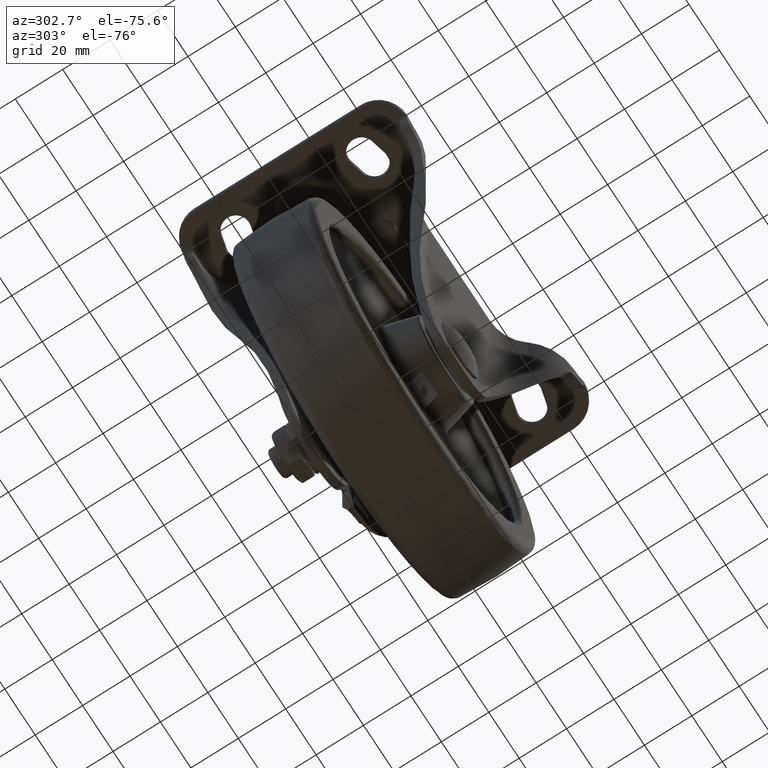
[diagram: clean part render]
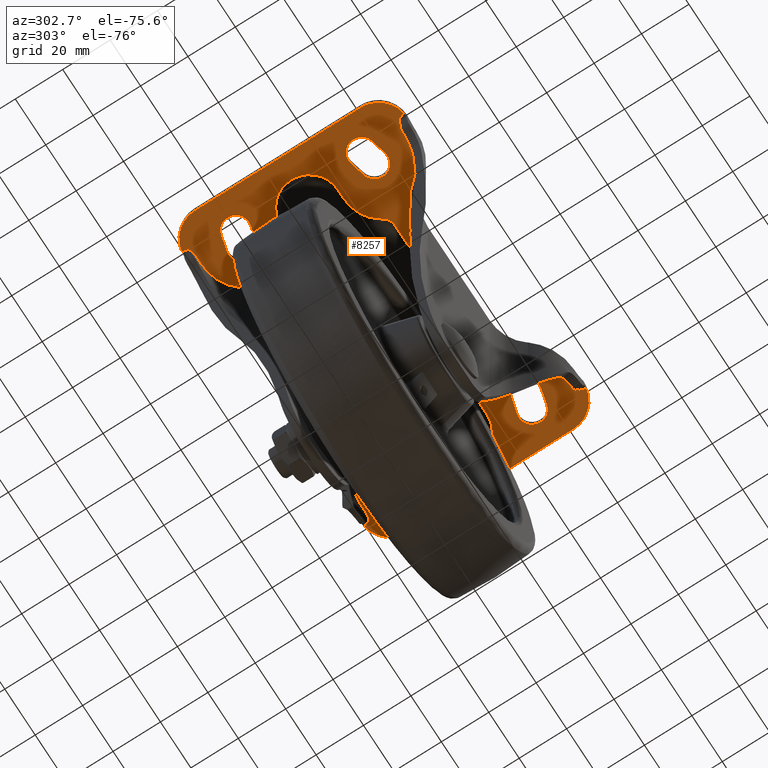
[diagram: same view with one face highlighted and labeled with its STEP entity id]
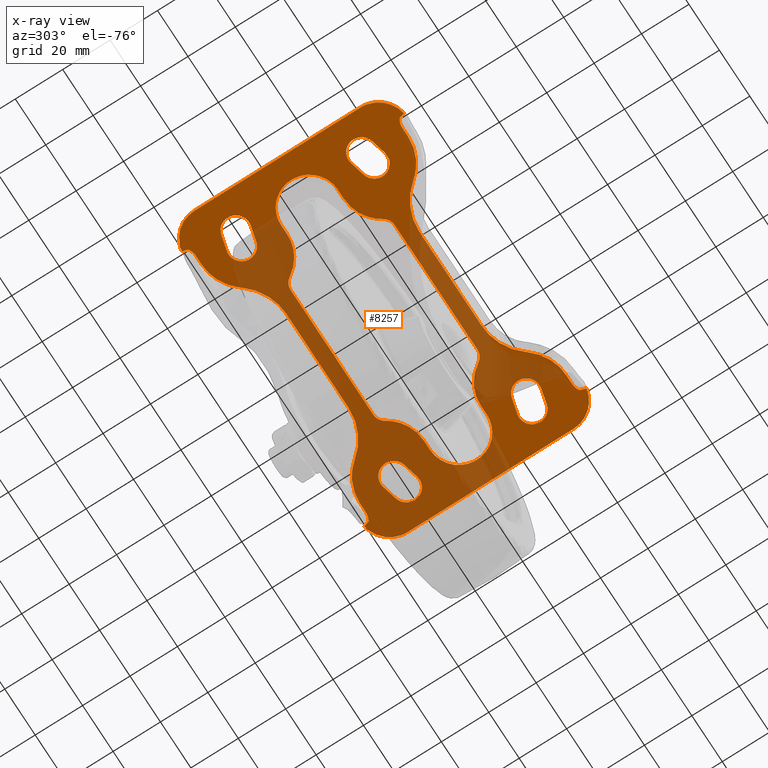
[diagram: x-ray of the same camera — body ghosted, the highlighted face saturated]
A machine part, auxiliary view. The second image highlights one B-rep face of the part: STEP entity #8257.
The next image is the same camera in x-ray: the body ghosted, the highlighted face saturated — about 50% of this face is hidden behind the body in this view.
In plain terms, the highlighted face is a freeform B-spline surface patch.
Its self-contained STEP definition (entity closure, byte-faithful):
#5014=CARTESIAN_POINT('',(-45.0,12.0,111.500000000000000));
#5015=VERTEX_POINT('',#5014);
#5027=CARTESIAN_POINT('',(-31.370633280001300,19.619047619047450,111.500000000000000));
#5028=VERTEX_POINT('',#5027);
#5029=CARTESIAN_POINT('',(-31.370633280001361,19.619047619047500,111.500000000000000));
#5030=CARTESIAN_POINT('',(-36.055728090000926,11.999999999999998,111.500000000000000));
#5031=CARTESIAN_POINT('',(-45.0,12.0,111.500000000000000));
#5039=(BOUNDED_CURVE()B_SPLINE_CURVE(2,(#5029,#5030,#5031),.UNSPECIFIED.,.F.,.U.)CURVE()GEOMETRIC_REPRESENTATION_ITEM()QUASI_UNIFORM_CURVE()RATIONAL_B_SPLINE_CURVE((1.0,0.872871560943972,1.0))REPRESENTATION_ITEM(''));
#5040=EDGE_CURVE('',#5028,#5015,#5039,.T.);
#5074=CARTESIAN_POINT('',(-27.111453999999998,21.999999999999751,111.500000000000000));
#5075=VERTEX_POINT('',#5074);
#5089=CARTESIAN_POINT('',(-31.370633280001272,19.619047619047429,111.500000000000000));
#5090=CARTESIAN_POINT('',(-29.906540402500724,22.000001218657896,111.499999999999990));
#5091=CARTESIAN_POINT('',(-27.111453999999998,21.999999999999279,111.500000000000000));
#5099=(BOUNDED_CURVE()B_SPLINE_CURVE(2,(#5089,#5090,#5091),.UNSPECIFIED.,.F.,.U.)CURVE()GEOMETRIC_REPRESENTATION_ITEM()QUASI_UNIFORM_CURVE()RATIONAL_B_SPLINE_CURVE((1.0,0.872871454570761,1.0))REPRESENTATION_ITEM(''));
#5100=EDGE_CURVE('',#5028,#5075,#5099,.T.);
#5119=CARTESIAN_POINT('',(-48.999996230088712,11.999999999999400,111.500000000000000));
#5120=VERTEX_POINT('',#5119);
#5132=CARTESIAN_POINT('',(-45.0,12.0,111.500000000000000));
#5133=CARTESIAN_POINT('',(-48.999996230088712,11.999999999999400,111.500000000000000));
#5134=QUASI_UNIFORM_CURVE('',1,(#5132,#5133),.UNSPECIFIED.,.F.,.U.);
#5135=EDGE_CURVE('',#5015,#5120,#5134,.T.);
#5156=CARTESIAN_POINT('',(27.111453999999899,22.0,111.500000000000000));
#5157=VERTEX_POINT('',#5156);
#5171=CARTESIAN_POINT('',(27.111453999999899,22.0,111.500000000000000));
#5172=CARTESIAN_POINT('',(-27.111453999999998,21.999999999999751,111.500000000000000));
#5173=QUASI_UNIFORM_CURVE('',1,(#5171,#5172),.UNSPECIFIED.,.F.,.U.);
#5174=EDGE_CURVE('',#5157,#5075,#5173,.T.);
#5202=CARTESIAN_POINT('',(-49.0,-12.0,111.500000000000000));
#5203=VERTEX_POINT('',#5202);
#5215=CARTESIAN_POINT('',(-49.0,-12.0,111.500000000000000));
#5216=CARTESIAN_POINT('',(-49.834472361555413,-12.000130320826120,111.500000000000200));
#5217=CARTESIAN_POINT('',(-51.307036835696522,-11.845745957801469,111.499999999999800));
#5218=CARTESIAN_POINT('',(-53.525936953354403,-11.187532414233839,111.500000000000300));
#5219=CARTESIAN_POINT('',(-55.723493860621502,-10.064688621414570,111.499999999998810));
#5220=CARTESIAN_POINT('',(-57.804894789090433,-8.313266858075561,111.500000000003600));
#5221=CARTESIAN_POINT('',(-59.305230198699100,-6.290139808948238,111.499999999992100));
#5222=CARTESIAN_POINT('',(-60.179488599382744,-4.470232022201082,111.500000000006390));
#5223=CARTESIAN_POINT('',(-60.743938218803407,-2.688699592063443,111.499999999996310));
#5224=CARTESIAN_POINT('',(-61.015091145477939,-0.934890144535096,111.500000000001510));
#5225=CARTESIAN_POINT('',(-61.001902529251062,1.229906800372216,111.499999999999100));
#5226=CARTESIAN_POINT('',(-60.640275044617397,3.171974123749511,111.500000000001190));
#5227=CARTESIAN_POINT('',(-59.856133431873232,5.242440736531533,111.499999999997300));
#5228=CARTESIAN_POINT('',(-58.837866419373263,6.989639497175285,111.500000000007600));
#5229=CARTESIAN_POINT('',(-57.614938377356673,8.407247165037896,111.499999999998390));
#5230=CARTESIAN_POINT('',(-56.252664831393382,9.611821585403630,111.499999999999800));
#5231=CARTESIAN_POINT('',(-54.524242616982100,10.751674189850281,111.500000000000300));
#5232=CARTESIAN_POINT('',(-51.994201655433372,11.745420406537910,111.499999999999900));
#5233=CARTESIAN_POINT('',(-50.030861091300579,12.000313627264150,111.500000000000100));
#5234=CARTESIAN_POINT('',(-48.999996230088712,11.999999999999400,111.500000000000000));
#5235=B_SPLINE_CURVE_WITH_KNOTS('',3,(#5215,#5216,#5217,#5218,#5219,#5220,#5221,#5222,#5223,#5224,#5225,#5226,#5227,#5228,#5229,#5230,#5231,#5232,#5233,#5234),.UNSPECIFIED.,.F.,.U.,(4,1,1,1,1,1,1,1,1,1,1,1,1,1,1,1,1,4),(0.000000440154473,2.503406370306337,4.417887970567954,6.921379918940346,9.866651256911055,12.517442189424440,14.431713789825560,15.904416879649309,18.113359223212068,19.733262176311989,22.384052188058352,24.003895212551701,26.360012764047379,28.421772890683361,29.599875401871369,31.808830370072521,34.606834739181380,37.699352159154238),.UNSPECIFIED.);
#5236=EDGE_CURVE('',#5203,#5120,#5235,.T.);
#5260=CARTESIAN_POINT('',(31.370629280001499,19.619047619047450,111.500000000000000));
#5261=VERTEX_POINT('',#5260);
#5276=CARTESIAN_POINT('',(27.111453999999899,22.0,111.500000000000000));
#5277=CARTESIAN_POINT('',(29.906537777500990,21.999998982590316,111.500000000000000));
#5278=CARTESIAN_POINT('',(31.370629280001609,19.619047619047521,111.500000000000000));
#5286=(BOUNDED_CURVE()B_SPLINE_CURVE(2,(#5276,#5277,#5278),.UNSPECIFIED.,.F.,.U.)CURVE()GEOMETRIC_REPRESENTATION_ITEM()QUASI_UNIFORM_CURVE()RATIONAL_B_SPLINE_CURVE((1.0,0.872871649750756,1.0))REPRESENTATION_ITEM(''));
#5287=EDGE_CURVE('',#5157,#5261,#5286,.T.);
#5306=CARTESIAN_POINT('',(-44.999994973451649,-12.000000000000799,111.500000000000000));
#5307=VERTEX_POINT('',#5306);
#5318=CARTESIAN_POINT('',(-49.0,-12.0,111.500000000000000));
#5319=CARTESIAN_POINT('',(-44.999994973451649,-12.000000000000799,111.500000000000000));
#5320=QUASI_UNIFORM_CURVE('',1,(#5318,#5319),.UNSPECIFIED.,.F.,.U.);
#5321=EDGE_CURVE('',#5203,#5307,#5320,.T.);
#5345=CARTESIAN_POINT('',(44.999996000000152,12.0,111.500000000000000));
#5346=VERTEX_POINT('',#5345);
#5360=CARTESIAN_POINT('',(44.999996000000152,12.0,111.500000000000000));
#5361=CARTESIAN_POINT('',(36.055724090001121,12.000000000000005,111.500000000000010));
#5362=CARTESIAN_POINT('',(31.370629280001531,19.619047619047471,111.500000000000000));
#5370=(BOUNDED_CURVE()B_SPLINE_CURVE(2,(#5360,#5361,#5362),.UNSPECIFIED.,.F.,.U.)CURVE()GEOMETRIC_REPRESENTATION_ITEM()QUASI_UNIFORM_CURVE()RATIONAL_B_SPLINE_CURVE((1.0,0.872871560943972,1.0))REPRESENTATION_ITEM(''));
#5371=EDGE_CURVE('',#5346,#5261,#5370,.T.);
#5393=CARTESIAN_POINT('',(-31.370633280001300,-19.619047619047450,111.500000000000000));
#5394=VERTEX_POINT('',#5393);
#5406=CARTESIAN_POINT('',(-44.999994973451649,-12.000000000000790,111.500000000000000));
#5407=CARTESIAN_POINT('',(-36.055726362125100,-12.000002809925702,111.500000000000010));
#5408=CARTESIAN_POINT('',(-31.370633280001361,-19.619047619047489,111.500000000000000));
#5416=(BOUNDED_CURVE()B_SPLINE_CURVE(2,(#5406,#5407,#5408),.UNSPECIFIED.,.F.,.U.)CURVE()GEOMETRIC_REPRESENTATION_ITEM()QUASI_UNIFORM_CURVE()RATIONAL_B_SPLINE_CURVE((1.0,0.872871637590975,1.0))REPRESENTATION_ITEM(''));
#5417=EDGE_CURVE('',#5307,#5394,#5416,.T.);
#5438=CARTESIAN_POINT('',(48.999996000000102,12.0,111.500000000000000));
#5439=VERTEX_POINT('',#5438);
#5453=CARTESIAN_POINT('',(48.999996000000102,12.0,111.500000000000000));
#5454=CARTESIAN_POINT('',(44.999996000000152,12.0,111.500000000000000));
#5455=QUASI_UNIFORM_CURVE('',1,(#5453,#5454),.UNSPECIFIED.,.F.,.U.);
#5456=EDGE_CURVE('',#5439,#5346,#5455,.T.);
#5478=CARTESIAN_POINT('',(-27.111453999999998,-22.0,111.500000000000000));
#5479=VERTEX_POINT('',#5478);
#5490=CARTESIAN_POINT('',(-27.111453999999998,-22.0,111.500000000000000));
#5491=CARTESIAN_POINT('',(-29.906540402500852,-22.000001218658145,111.500000000000000));
#5492=CARTESIAN_POINT('',(-31.370633280001378,-19.619047619047500,111.500000000000000));
#5500=(BOUNDED_CURVE()B_SPLINE_CURVE(2,(#5490,#5491,#5492),.UNSPECIFIED.,.F.,.U.)CURVE()GEOMETRIC_REPRESENTATION_ITEM()QUASI_UNIFORM_CURVE()RATIONAL_B_SPLINE_CURVE((1.0,0.872871454570751,1.0))REPRESENTATION_ITEM(''));
#5501=EDGE_CURVE('',#5479,#5394,#5500,.T.);
#5531=CARTESIAN_POINT('',(48.999988250738298,-11.999999999997501,111.500000000000000));
#5532=VERTEX_POINT('',#5531);
#5545=CARTESIAN_POINT('',(48.999996000000102,12.0,111.500000000000000));
#5546=CARTESIAN_POINT('',(49.638106384124882,12.000025372806370,111.500000000000000));
#5547=CARTESIAN_POINT('',(51.012548082255393,11.890173149357519,111.500000000000200));
#5548=CARTESIAN_POINT('',(52.874545212118690,11.411598380359870,111.499999999999600));
#5549=CARTESIAN_POINT('',(54.633453086579273,10.644752016604700,111.500000000000500));
#5550=CARTESIAN_POINT('',(56.429487943943798,9.523046787035227,111.499999999999600));
#5551=CARTESIAN_POINT('',(58.085540300626342,7.965548623183111,111.500000000000100));
#5552=CARTESIAN_POINT('',(59.503971014735249,5.951424093706848,111.500000000000300));
#5553=CARTESIAN_POINT('',(60.396139925271640,3.971569012458352,111.499999999999600));
#5554=CARTESIAN_POINT('',(60.968149688144877,1.627368968688728,111.499999999999400));
#5555=CARTESIAN_POINT('',(61.061500901101432,-0.545142599014517,111.500000000000400));
#5556=CARTESIAN_POINT('',(60.714768696392937,-2.882219748546745,111.499999999999100));
#5557=CARTESIAN_POINT('',(60.131360934407482,-4.612587362935891,111.500000000000400));
#5558=CARTESIAN_POINT('',(59.248561001829067,-6.313919320938458,111.500000000000000));
#5559=CARTESIAN_POINT('',(58.227321297915097,-7.764062421828831,111.500000000000000));
#5560=CARTESIAN_POINT('',(56.589955447540198,-9.401575400549820,111.500000000000000));
#5561=CARTESIAN_POINT('',(54.609489053944607,-10.707436852216279,111.500000000000100));
#5562=CARTESIAN_POINT('',(51.994045361067549,-11.734653837966860,111.499999999999900));
#5563=CARTESIAN_POINT('',(50.129046213932241,-12.000465256668610,111.500000000000100));
#5564=CARTESIAN_POINT('',(48.999988250738298,-11.999999999997501,111.500000000000000));
#5565=B_SPLINE_CURVE_WITH_KNOTS('',3,(#5545,#5546,#5547,#5548,#5549,#5550,#5551,#5552,#5553,#5554,#5555,#5556,#5557,#5558,#5559,#5560,#5561,#5562,#5563,#5564),.UNSPECIFIED.,.F.,.U.,(4,1,1,1,1,1,1,1,1,1,1,1,1,1,1,1,1,4),(0.000000440100784,1.914347118865059,4.123331847487108,5.743254398602609,7.657691380527087,10.455703550303920,12.517443510705210,15.020775070945430,16.935248663473210,19.733264259268729,21.500419982528999,24.003897746325311,25.181918362765149,27.243668579335971,29.305322689265640,32.103370949841832,34.312355740009743,37.699356138579702),.UNSPECIFIED.);
#5566=EDGE_CURVE('',#5439,#5532,#5565,.T.);
#5585=CARTESIAN_POINT('',(27.111452180001951,-21.999999999999751,111.500000000000000));
#5586=VERTEX_POINT('',#5585);
#5598=CARTESIAN_POINT('',(-27.111453999999998,-22.0,111.500000000000000));
#5599=CARTESIAN_POINT('',(27.111452180001951,-21.999999999999751,111.500000000000000));
#5600=QUASI_UNIFORM_CURVE('',1,(#5598,#5599),.UNSPECIFIED.,.F.,.U.);
#5601=EDGE_CURVE('',#5479,#5586,#5600,.T.);
#5622=CARTESIAN_POINT('',(44.999996000000102,-12.0,111.500000000000000));
#5623=VERTEX_POINT('',#5622);
#5637=CARTESIAN_POINT('',(44.999996000000102,-12.0,111.500000000000000));
#5638=CARTESIAN_POINT('',(48.999988250738298,-11.999999999997501,111.500000000000000));
#5639=QUASI_UNIFORM_CURVE('',1,(#5637,#5638),.UNSPECIFIED.,.F.,.U.);
#5640=EDGE_CURVE('',#5623,#5532,#5639,.T.);
#5662=CARTESIAN_POINT('',(31.370629280001499,-19.619047619047450,111.500000000000000));
#5663=VERTEX_POINT('',#5662);
#5675=CARTESIAN_POINT('',(31.370629280001499,-19.619047619047450,111.500000000000000));
#5676=CARTESIAN_POINT('',(29.906537151876620,-21.999999999999748,111.500000000000000));
#5677=CARTESIAN_POINT('',(27.111452180001951,-21.999999999999751,111.500000000000000));
#5685=(BOUNDED_CURVE()B_SPLINE_CURVE(2,(#5675,#5676,#5677),.UNSPECIFIED.,.F.,.U.)CURVE()GEOMETRIC_REPRESENTATION_ITEM()QUASI_UNIFORM_CURVE()RATIONAL_B_SPLINE_CURVE((1.0,0.872871560943974,1.0))REPRESENTATION_ITEM(''));
#5686=EDGE_CURVE('',#5663,#5586,#5685,.T.);
#5711=CARTESIAN_POINT('',(31.370629280001531,-19.619047619047478,111.500000000000000));
#5712=CARTESIAN_POINT('',(36.055724090001100,-12.000000000000005,111.500000000000000));
#5713=CARTESIAN_POINT('',(44.999996000000152,-12.0,111.500000000000000));
#5721=(BOUNDED_CURVE()B_SPLINE_CURVE(2,(#5711,#5712,#5713),.UNSPECIFIED.,.F.,.U.)CURVE()GEOMETRIC_REPRESENTATION_ITEM()QUASI_UNIFORM_CURVE()RATIONAL_B_SPLINE_CURVE((1.0,0.872871560943972,1.0))REPRESENTATION_ITEM(''));
#5722=EDGE_CURVE('',#5663,#5623,#5721,.T.);
#6466=CARTESIAN_POINT('',(37.376290127769849,-36.331249999999997,111.500000000000000));
#6467=VERTEX_POINT('',#6466);
#6473=CARTESIAN_POINT('',(51.999996000000003,-43.500000000000000,111.500000000000000));
#6474=VERTEX_POINT('',#6473);
#6475=CARTESIAN_POINT('',(37.376290127769813,-36.331250000000033,111.500000000000000));
#6476=CARTESIAN_POINT('',(42.931031117996788,-43.500000000000000,111.500000000000040));
#6477=CARTESIAN_POINT('',(51.999996000000003,-43.500000000000000,111.500000000000000));
#6485=(BOUNDED_CURVE()B_SPLINE_CURVE(2,(#6475,#6476,#6477),.UNSPECIFIED.,.F.,.U.)CURVE()GEOMETRIC_REPRESENTATION_ITEM()QUASI_UNIFORM_CURVE()RATIONAL_B_SPLINE_CURVE((1.0,0.897914249803399,1.0))REPRESENTATION_ITEM(''));
#6486=EDGE_CURVE('',#6467,#6474,#6485,.T.);
#6513=CARTESIAN_POINT('',(20.381172492475301,-28.0,111.500000000000000));
#6514=VERTEX_POINT('',#6513);
#6520=CARTESIAN_POINT('',(37.376290127769849,-36.331249999999997,111.500000000000000));
#6521=CARTESIAN_POINT('',(30.920780328316880,-28.000000000000004,111.500000000000040));
#6522=CARTESIAN_POINT('',(20.381172492475301,-28.0,111.500000000000000));
#6530=(BOUNDED_CURVE()B_SPLINE_CURVE(2,(#6520,#6521,#6522),.UNSPECIFIED.,.F.,.U.)CURVE()GEOMETRIC_REPRESENTATION_ITEM()QUASI_UNIFORM_CURVE()RATIONAL_B_SPLINE_CURVE((1.0,0.897914249803399,1.0))REPRESENTATION_ITEM(''));
#6531=EDGE_CURVE('',#6467,#6514,#6530,.T.);
#6543=CARTESIAN_POINT('',(-20.381176492475149,-28.0,111.500000000000000));
#6544=VERTEX_POINT('',#6543);
#6550=CARTESIAN_POINT('',(20.381172492475301,-28.0,111.500000000000000));
#6551=CARTESIAN_POINT('',(-20.381176492475149,-28.0,111.500000000000000));
#6552=QUASI_UNIFORM_CURVE('',1,(#6550,#6551),.UNSPECIFIED.,.F.,.U.);
#6553=EDGE_CURVE('',#6514,#6544,#6552,.T.);
#6582=CARTESIAN_POINT('',(-37.376294127769746,-36.331249999999997,111.500000000000000));
#6583=VERTEX_POINT('',#6582);
#6589=CARTESIAN_POINT('',(-20.381176492475149,-28.0,111.500000000000000));
#6590=CARTESIAN_POINT('',(-30.920784328316746,-28.000000000000004,111.499999999999970));
#6591=CARTESIAN_POINT('',(-37.376294127769718,-36.331250000000033,111.500000000000000));
#6599=(BOUNDED_CURVE()B_SPLINE_CURVE(2,(#6589,#6590,#6591),.UNSPECIFIED.,.F.,.U.)CURVE()GEOMETRIC_REPRESENTATION_ITEM()QUASI_UNIFORM_CURVE()RATIONAL_B_SPLINE_CURVE((1.0,0.897914249803398,1.0))REPRESENTATION_ITEM(''));
#6600=EDGE_CURVE('',#6544,#6583,#6599,.T.);
#6639=CARTESIAN_POINT('',(-52.0,-43.500000000000000,111.500000000000000));
#6640=VERTEX_POINT('',#6639);
#6646=CARTESIAN_POINT('',(-52.0,-43.500000000000000,111.500000000000000));
#6647=CARTESIAN_POINT('',(-42.931035117996764,-43.500000000000000,111.499999999999970));
#6648=CARTESIAN_POINT('',(-37.376294127769782,-36.331249999999983,111.500000000000000));
#6656=(BOUNDED_CURVE()B_SPLINE_CURVE(2,(#6646,#6647,#6648),.UNSPECIFIED.,.F.,.U.)CURVE()GEOMETRIC_REPRESENTATION_ITEM()QUASI_UNIFORM_CURVE()RATIONAL_B_SPLINE_CURVE((1.0,0.897914249803398,1.0))REPRESENTATION_ITEM(''));
#6657=EDGE_CURVE('',#6640,#6583,#6656,.T.);
#6717=CARTESIAN_POINT('',(-59.169609745831998,-44.417674939436203,111.500000000000000));
#6718=VERTEX_POINT('',#6717);
#6743=CARTESIAN_POINT('',(-54.999996000001097,-43.500000000000000,111.500000000000000));
#6744=VERTEX_POINT('',#6743);
#6745=CARTESIAN_POINT('',(-54.999996000001097,-43.499999999999957,111.500000000000000));
#6746=CARTESIAN_POINT('',(-57.223919481216797,-43.326737259377332,111.500000000000040));
#6747=CARTESIAN_POINT('',(-59.169609745831991,-44.417674939436218,111.500000000000000));
#6755=(BOUNDED_CURVE()B_SPLINE_CURVE(2,(#6745,#6746,#6747),.UNSPECIFIED.,.F.,.U.)CURVE()GEOMETRIC_REPRESENTATION_ITEM()QUASI_UNIFORM_CURVE()RATIONAL_B_SPLINE_CURVE((1.0,0.956981007399413,1.0))REPRESENTATION_ITEM(''));
#6756=EDGE_CURVE('',#6744,#6718,#6755,.T.);
#6791=CARTESIAN_POINT('',(-59.169609745831998,44.417674939436303,111.500000000000000));
#6792=VERTEX_POINT('',#6791);
#6793=CARTESIAN_POINT('',(-54.999996000001097,43.500000000000000,111.500000000000000));
#6794=VERTEX_POINT('',#6793);
#6795=CARTESIAN_POINT('',(-59.169609745832041,44.417674939436239,111.500000000000000));
#6796=CARTESIAN_POINT('',(-57.223919481216832,43.326737259377332,111.499999999999960));
#6797=CARTESIAN_POINT('',(-54.999996000001097,43.499999999999957,111.500000000000000));
#6805=(BOUNDED_CURVE()B_SPLINE_CURVE(2,(#6795,#6796,#6797),.UNSPECIFIED.,.F.,.U.)CURVE()GEOMETRIC_REPRESENTATION_ITEM()QUASI_UNIFORM_CURVE()RATIONAL_B_SPLINE_CURVE((1.0,0.956981007399412,1.0))REPRESENTATION_ITEM(''));
#6806=EDGE_CURVE('',#6792,#6794,#6805,.T.);
#6913=CARTESIAN_POINT('',(-37.376294127769853,36.331249999999997,111.500000000000000));
#6914=VERTEX_POINT('',#6913);
#6920=CARTESIAN_POINT('',(-52.0,43.500000000000000,111.500000000000000));
#6921=VERTEX_POINT('',#6920);
#6922=CARTESIAN_POINT('',(-37.376294127769818,36.331250000000033,111.500000000000000));
#6923=CARTESIAN_POINT('',(-42.931035117996792,43.500000000000007,111.500000000000010));
#6924=CARTESIAN_POINT('',(-52.0,43.500000000000000,111.500000000000000));
#6932=(BOUNDED_CURVE()B_SPLINE_CURVE(2,(#6922,#6923,#6924),.UNSPECIFIED.,.F.,.U.)CURVE()GEOMETRIC_REPRESENTATION_ITEM()QUASI_UNIFORM_CURVE()RATIONAL_B_SPLINE_CURVE((1.0,0.897914249803399,1.0))REPRESENTATION_ITEM(''));
#6933=EDGE_CURVE('',#6914,#6921,#6932,.T.);
#6992=CARTESIAN_POINT('',(-20.381176492475149,28.0,111.500000000000000));
#6993=VERTEX_POINT('',#6992);
#6999=CARTESIAN_POINT('',(-37.376294127769761,36.331250000000082,111.500000000000000));
#7000=CARTESIAN_POINT('',(-30.920784328316788,28.0,111.499999999999970));
#7001=CARTESIAN_POINT('',(-20.381176492475149,28.0,111.500000000000000));
#7009=(BOUNDED_CURVE()B_SPLINE_CURVE(2,(#6999,#7000,#7001),.UNSPECIFIED.,.F.,.U.)CURVE()GEOMETRIC_REPRESENTATION_ITEM()QUASI_UNIFORM_CURVE()RATIONAL_B_SPLINE_CURVE((1.0,0.897914249803398,1.0))REPRESENTATION_ITEM(''));
#7010=EDGE_CURVE('',#6914,#6993,#7009,.T.);
#7058=CARTESIAN_POINT('',(20.381172492475301,28.0,111.500000000000000));
#7059=VERTEX_POINT('',#7058);
#7065=CARTESIAN_POINT('',(20.381172492475301,28.0,111.500000000000000));
#7066=CARTESIAN_POINT('',(-20.381176492475149,28.0,111.500000000000000));
#7067=QUASI_UNIFORM_CURVE('',1,(#7065,#7066),.UNSPECIFIED.,.F.,.U.);
#7068=EDGE_CURVE('',#7059,#6993,#7067,.T.);
#7110=CARTESIAN_POINT('',(37.376290127769849,36.331249999999997,111.500000000000000));
#7111=VERTEX_POINT('',#7110);
#7117=CARTESIAN_POINT('',(20.381172492475301,28.0,111.500000000000000));
#7118=CARTESIAN_POINT('',(30.920780328316880,28.000000000000004,111.500000000000040));
#7119=CARTESIAN_POINT('',(37.376290127769842,36.331249999999990,111.500000000000000));
#7127=(BOUNDED_CURVE()B_SPLINE_CURVE(2,(#7117,#7118,#7119),.UNSPECIFIED.,.F.,.U.)CURVE()GEOMETRIC_REPRESENTATION_ITEM()QUASI_UNIFORM_CURVE()RATIONAL_B_SPLINE_CURVE((1.0,0.897914249803399,1.0))REPRESENTATION_ITEM(''));
#7128=EDGE_CURVE('',#7059,#7111,#7127,.T.);
#7181=CARTESIAN_POINT('',(51.999996000000003,43.500000000000000,111.500000000000000));
#7182=VERTEX_POINT('',#7181);
#7188=CARTESIAN_POINT('',(51.999996000000003,43.500000000000000,111.500000000000000));
#7189=CARTESIAN_POINT('',(42.931031117996788,43.500000000000000,111.500000000000030));
#7190=CARTESIAN_POINT('',(37.376290127769813,36.331250000000033,111.500000000000000));
#7198=(BOUNDED_CURVE()B_SPLINE_CURVE(2,(#7188,#7189,#7190),.UNSPECIFIED.,.F.,.U.)CURVE()GEOMETRIC_REPRESENTATION_ITEM()QUASI_UNIFORM_CURVE()RATIONAL_B_SPLINE_CURVE((1.0,0.897914249803399,1.0))REPRESENTATION_ITEM(''));
#7199=EDGE_CURVE('',#7182,#7111,#7198,.T.);
#7436=CARTESIAN_POINT('',(54.999996000001097,-43.500000000000000,111.500000000000000));
#7437=VERTEX_POINT('',#7436);
#7443=CARTESIAN_POINT('',(59.169609745831998,-44.417674939436253,111.500000000000000));
#7444=VERTEX_POINT('',#7443);
#7445=CARTESIAN_POINT('',(59.169609745832012,-44.417674939436232,111.500000000000000));
#7446=CARTESIAN_POINT('',(57.223919481216818,-43.326737259377325,111.500000000000010));
#7447=CARTESIAN_POINT('',(54.999996000001097,-43.499999999999957,111.500000000000000));
#7455=(BOUNDED_CURVE()B_SPLINE_CURVE(2,(#7445,#7446,#7447),.UNSPECIFIED.,.F.,.U.)CURVE()GEOMETRIC_REPRESENTATION_ITEM()QUASI_UNIFORM_CURVE()RATIONAL_B_SPLINE_CURVE((1.0,0.956981007399412,1.0))REPRESENTATION_ITEM(''));
#7456=EDGE_CURVE('',#7444,#7437,#7455,.T.);
#7493=CARTESIAN_POINT('',(54.999996000001097,-43.500000000000000,111.500000000000000));
#7494=CARTESIAN_POINT('',(51.999996000000003,-43.500000000000000,111.500000000000000));
#7495=QUASI_UNIFORM_CURVE('',1,(#7493,#7494),.UNSPECIFIED.,.F.,.U.);
#7496=EDGE_CURVE('',#7437,#6474,#7495,.T.);
#7521=CARTESIAN_POINT('',(-52.0,-43.500000000000000,111.500000000000000));
#7522=CARTESIAN_POINT('',(-54.999996000001097,-43.500000000000000,111.500000000000000));
#7523=QUASI_UNIFORM_CURVE('',1,(#7521,#7522),.UNSPECIFIED.,.F.,.U.);
#7524=EDGE_CURVE('',#6640,#6744,#7523,.T.);
#7550=CARTESIAN_POINT('',(-52.0,43.500000000000000,111.500000000000000));
#7551=CARTESIAN_POINT('',(-54.999996000001097,43.500000000000000,111.500000000000000));
#7552=QUASI_UNIFORM_CURVE('',1,(#7550,#7551),.UNSPECIFIED.,.F.,.U.);
#7553=EDGE_CURVE('',#6921,#6794,#7552,.T.);
#7579=CARTESIAN_POINT('',(54.999996000001097,43.500000000000000,111.500000000000000));
#7580=VERTEX_POINT('',#7579);
#7586=CARTESIAN_POINT('',(54.999996000001097,43.500000000000000,111.500000000000000));
#7587=CARTESIAN_POINT('',(51.999996000000003,43.500000000000000,111.500000000000000));
#7588=QUASI_UNIFORM_CURVE('',1,(#7586,#7587),.UNSPECIFIED.,.F.,.U.);
#7589=EDGE_CURVE('',#7580,#7182,#7588,.T.);
#7659=CARTESIAN_POINT('',(59.169609745831998,44.417674939436253,111.500000000000000));
#7660=VERTEX_POINT('',#7659);
#7685=CARTESIAN_POINT('',(54.999996000001097,43.499999999999957,111.500000000000000));
#7686=CARTESIAN_POINT('',(57.223919481216818,43.326737259377325,111.500000000000040));
#7687=CARTESIAN_POINT('',(59.169609745832012,44.417674939436232,111.500000000000000));
#7695=(BOUNDED_CURVE()B_SPLINE_CURVE(2,(#7685,#7686,#7687),.UNSPECIFIED.,.F.,.U.)CURVE()GEOMETRIC_REPRESENTATION_ITEM()QUASI_UNIFORM_CURVE()RATIONAL_B_SPLINE_CURVE((1.0,0.956981007399412,1.0))REPRESENTATION_ITEM(''));
#7696=EDGE_CURVE('',#7580,#7660,#7695,.T.);
#7818=CARTESIAN_POINT('',(-76.992999528852849,-51.520093952525563,111.500000000000000));
#7819=CARTESIAN_POINT('',(76.992999283945451,-51.520093952525563,111.500000000000000));
#7820=CARTESIAN_POINT('',(-76.992999528852849,51.520096465256820,111.500000000000000));
#7821=CARTESIAN_POINT('',(76.992999283945451,51.520096465256820,111.500000000000000));
#7822=B_SPLINE_SURFACE_WITH_KNOTS('',1,1,((#7818,#7820),(#7819,#7821)),.UNSPECIFIED.,.F.,.F.,.U.,(2,2),(2,2),(0.0,153.985998812798300),(0.0,103.040190417782400),.UNSPECIFIED.);
#7823=ORIENTED_EDGE('',*,*,#6756,.T.);
#7824=CARTESIAN_POINT('',(-59.559182478311250,-45.629191199192427,111.500000000000000));
#7825=VERTEX_POINT('',#7824);
#7826=CARTESIAN_POINT('',(-59.169609745831998,-44.417674939436203,111.500000000000000));
#7827=CARTESIAN_POINT('',(-59.299467323324919,-44.821513692687823,111.500000000000000));
#7828=CARTESIAN_POINT('',(-59.429324900818102,-45.225352445940132,111.500000000000000));
#7829=CARTESIAN_POINT('',(-59.559182478311257,-45.629191199192427,111.500000000000000));
#7830=B_SPLINE_CURVE_WITH_KNOTS('',3,(#7826,#7827,#7828,#7829),.UNSPECIFIED.,.F.,.U.,(4,4),(0.512805447302289,0.610198630422161),.UNSPECIFIED.);
#7831=EDGE_CURVE('',#6718,#7825,#7830,.T.);
#7832=ORIENTED_EDGE('',*,*,#7831,.T.);
#7833=CARTESIAN_POINT('',(-59.948755210790701,-46.840707458949304,111.500000000000000));
#7834=VERTEX_POINT('',#7833);
#7835=CARTESIAN_POINT('',(-59.559182478311257,-45.629191199192427,111.500000000000000));
#7836=CARTESIAN_POINT('',(-59.689040055804433,-46.033029952444721,111.500000000000000));
#7837=CARTESIAN_POINT('',(-59.818897633297588,-46.436868705697009,111.500000000000000));
#7838=CARTESIAN_POINT('',(-59.948755210790743,-46.840707458949282,111.500000000000000));
#7839=B_SPLINE_CURVE_WITH_KNOTS('',3,(#7835,#7836,#7837,#7838),.UNSPECIFIED.,.F.,.U.,(4,4),(0.610198630422161,0.707591813542032),.UNSPECIFIED.);
#7840=EDGE_CURVE('',#7825,#7834,#7839,.T.);
#7841=ORIENTED_EDGE('',*,*,#7840,.T.);
#7842=CARTESIAN_POINT('',(-70.0,-35.0,111.500000000000000));
#7843=VERTEX_POINT('',#7842);
#7844=CARTESIAN_POINT('',(-59.948755210790686,-46.840707458949240,111.500000000000000));
#7845=CARTESIAN_POINT('',(-70.000000000000014,-45.186463763983184,111.499999999999990));
#7846=CARTESIAN_POINT('',(-70.0,-35.0,111.500000000000000));
#7854=(BOUNDED_CURVE()B_SPLINE_CURVE(2,(#7844,#7845,#7846),.UNSPECIFIED.,.F.,.U.)CURVE()GEOMETRIC_REPRESENTATION_ITEM()QUASI_UNIFORM_CURVE()RATIONAL_B_SPLINE_CURVE((1.0,0.762363518134850,1.0))REPRESENTATION_ITEM(''));
#7855=EDGE_CURVE('',#7834,#7843,#7854,.T.);
#7856=ORIENTED_EDGE('',*,*,#7855,.T.);
#7857=CARTESIAN_POINT('',(-70.0,35.0,111.500000000000000));
#7858=VERTEX_POINT('',#7857);
#7859=CARTESIAN_POINT('',(-70.0,-35.0,111.500000000000000));
#7860=CARTESIAN_POINT('',(-70.0,35.0,111.500000000000000));
#7861=QUASI_UNIFORM_CURVE('',1,(#7859,#7860),.UNSPECIFIED.,.F.,.U.);
#7862=EDGE_CURVE('',#7843,#7858,#7861,.T.);
#7863=ORIENTED_EDGE('',*,*,#7862,.T.);
#7864=CARTESIAN_POINT('',(-59.948755210790701,46.840707458949197,111.500000000000000));
#7865=VERTEX_POINT('',#7864);
#7866=CARTESIAN_POINT('',(-70.0,35.0,111.500000000000000));
#7867=CARTESIAN_POINT('',(-70.0,45.186463763983149,111.500000000000000));
#7868=CARTESIAN_POINT('',(-59.948755210790722,46.840707458949232,111.500000000000000));
#7876=(BOUNDED_CURVE()B_SPLINE_CURVE(2,(#7866,#7867,#7868),.UNSPECIFIED.,.F.,.U.)CURVE()GEOMETRIC_REPRESENTATION_ITEM()QUASI_UNIFORM_CURVE()RATIONAL_B_SPLINE_CURVE((1.0,0.762363518134850,1.0))REPRESENTATION_ITEM(''));
#7877=EDGE_CURVE('',#7858,#7865,#7876,.T.);
#7878=ORIENTED_EDGE('',*,*,#7877,.T.);
#7879=CARTESIAN_POINT('',(-59.559182478311293,45.629191199192498,111.500000000000000));
#7880=VERTEX_POINT('',#7879);
#7881=CARTESIAN_POINT('',(-59.948755210790722,46.840707458949197,111.500000000000000));
#7882=CARTESIAN_POINT('',(-59.818897633297588,46.436868705696988,111.500000000000000));
#7883=CARTESIAN_POINT('',(-59.689040055804440,46.033029952444750,111.500000000000000));
#7884=CARTESIAN_POINT('',(-59.559182478311293,45.629191199192512,111.500000000000000));
#7885=B_SPLINE_CURVE_WITH_KNOTS('',3,(#7881,#7882,#7883,#7884),.UNSPECIFIED.,.F.,.U.,(4,4),(0.292408186457986,0.389801369577846),.UNSPECIFIED.);
#7886=EDGE_CURVE('',#7865,#7880,#7885,.T.);
#7887=ORIENTED_EDGE('',*,*,#7886,.T.);
#7888=CARTESIAN_POINT('',(-59.559182478311293,45.629191199192512,111.500000000000000));
#7889=CARTESIAN_POINT('',(-59.429324900818131,45.225352445940253,111.500000000000000));
#7890=CARTESIAN_POINT('',(-59.299467323324983,44.821513692688001,111.500000000000000));
#7891=CARTESIAN_POINT('',(-59.169609745831842,44.417674939435742,111.500000000000000));
#7892=B_SPLINE_CURVE_WITH_KNOTS('',3,(#7888,#7889,#7890,#7891),.UNSPECIFIED.,.F.,.U.,(4,4),(0.389801369577846,0.487194552697705),.UNSPECIFIED.);
#7893=EDGE_CURVE('',#7880,#6792,#7892,.T.);
#7894=ORIENTED_EDGE('',*,*,#7893,.T.);
#7895=ORIENTED_EDGE('',*,*,#6806,.T.);
#7896=ORIENTED_EDGE('',*,*,#7553,.F.);
#7897=ORIENTED_EDGE('',*,*,#6933,.F.);
#7898=ORIENTED_EDGE('',*,*,#7010,.T.);
#7899=ORIENTED_EDGE('',*,*,#7068,.F.);
#7900=ORIENTED_EDGE('',*,*,#7128,.T.);
#7901=ORIENTED_EDGE('',*,*,#7199,.F.);
#7902=ORIENTED_EDGE('',*,*,#7589,.F.);
#7903=ORIENTED_EDGE('',*,*,#7696,.T.);
#7904=CARTESIAN_POINT('',(59.559182377786641,45.629190886574960,111.500000000000000));
#7905=VERTEX_POINT('',#7904);
#7906=CARTESIAN_POINT('',(59.169609745832048,44.417674939436338,111.500000000000000));
#7907=CARTESIAN_POINT('',(59.299467289816903,44.821513588482553,111.500000000000000));
#7908=CARTESIAN_POINT('',(59.429324833801772,45.225352237528760,111.500000000000000));
#7909=CARTESIAN_POINT('',(59.559182377786641,45.629190886574968,111.500000000000000));
#7910=B_SPLINE_CURVE_WITH_KNOTS('',3,(#7906,#7907,#7908,#7909),.UNSPECIFIED.,.F.,.U.,(4,4),(0.292408186458042,0.389801344446686),.UNSPECIFIED.);
#7911=EDGE_CURVE('',#7660,#7905,#7910,.T.);
#7912=ORIENTED_EDGE('',*,*,#7911,.T.);
#7913=CARTESIAN_POINT('',(59.948755009741198,46.840706833713597,111.500000000000000));
#7914=VERTEX_POINT('',#7913);
#7915=CARTESIAN_POINT('',(59.559182377786641,45.629190886574968,111.500000000000000));
#7916=CARTESIAN_POINT('',(59.689039921771510,46.033029535621182,111.500000000000000));
#7917=CARTESIAN_POINT('',(59.818897465756379,46.436868184667382,111.500000000000000));
#7918=CARTESIAN_POINT('',(59.948755009741227,46.840706833713597,111.500000000000000));
#7919=B_SPLINE_CURVE_WITH_KNOTS('',3,(#7915,#7916,#7917,#7918),.UNSPECIFIED.,.F.,.U.,(4,4),(0.389801344446686,0.487194502435330),.UNSPECIFIED.);
#7920=EDGE_CURVE('',#7905,#7914,#7919,.T.);
#7921=ORIENTED_EDGE('',*,*,#7920,.T.);
#7922=CARTESIAN_POINT('',(69.999996000000095,35.0,111.500000000000000));
#7923=VERTEX_POINT('',#7922);
#7924=CARTESIAN_POINT('',(59.948755009741198,46.840706833713639,111.500000000000000));
#7925=CARTESIAN_POINT('',(69.999996000000095,45.186460451810547,111.500000000000000));
#7926=CARTESIAN_POINT('',(69.999996000000095,35.0,111.500000000000000));
#7934=(BOUNDED_CURVE()B_SPLINE_CURVE(2,(#7924,#7925,#7926),.UNSPECIFIED.,.F.,.U.)CURVE()GEOMETRIC_REPRESENTATION_ITEM()QUASI_UNIFORM_CURVE()RATIONAL_B_SPLINE_CURVE((1.0,0.762363621949884,1.0))REPRESENTATION_ITEM(''));
#7935=EDGE_CURVE('',#7914,#7923,#7934,.T.);
#7936=ORIENTED_EDGE('',*,*,#7935,.T.);
#7937=CARTESIAN_POINT('',(69.999996000000095,-35.0,111.500000000000000));
#7938=VERTEX_POINT('',#7937);
#7939=CARTESIAN_POINT('',(69.999996000000095,35.0,111.500000000000000));
#7940=CARTESIAN_POINT('',(69.999996000000095,-35.0,111.500000000000000));
#7941=QUASI_UNIFORM_CURVE('',1,(#7939,#7940),.UNSPECIFIED.,.F.,.U.);
#7942=EDGE_CURVE('',#7923,#7938,#7941,.T.);
#7943=ORIENTED_EDGE('',*,*,#7942,.T.);
#7944=CARTESIAN_POINT('',(59.948755009741198,-46.840706833713703,111.500000000000000));
#7945=VERTEX_POINT('',#7944);
#7946=CARTESIAN_POINT('',(69.999996000000095,-35.0,111.500000000000000));
#7947=CARTESIAN_POINT('',(69.999996000000095,-45.186460451810554,111.500000000000000));
#7948=CARTESIAN_POINT('',(59.948755009741191,-46.840706833713639,111.500000000000000));
#7956=(BOUNDED_CURVE()B_SPLINE_CURVE(2,(#7946,#7947,#7948),.UNSPECIFIED.,.F.,.U.)CURVE()GEOMETRIC_REPRESENTATION_ITEM()QUASI_UNIFORM_CURVE()RATIONAL_B_SPLINE_CURVE((1.0,0.762363621949884,1.0))REPRESENTATION_ITEM(''));
#7957=EDGE_CURVE('',#7938,#7945,#7956,.T.);
#7958=ORIENTED_EDGE('',*,*,#7957,.T.);
#7959=CARTESIAN_POINT('',(59.559182377786527,-45.629190886574690,111.500000000000000));
#7960=VERTEX_POINT('',#7959);
#7961=CARTESIAN_POINT('',(59.948755009741241,-46.840706833713682,111.500000000000000));
#7962=CARTESIAN_POINT('',(59.818897465756343,-46.436868184667361,111.500000000000000));
#7963=CARTESIAN_POINT('',(59.689039921771439,-46.033029535621040,111.500000000000000));
#7964=CARTESIAN_POINT('',(59.559182377786527,-45.629190886574698,111.500000000000000));
#7965=B_SPLINE_CURVE_WITH_KNOTS('',3,(#7961,#7962,#7963,#7964),.UNSPECIFIED.,.F.,.U.,(4,4),(0.512805497564665,0.610198655553343),.UNSPECIFIED.);
#7966=EDGE_CURVE('',#7945,#7960,#7965,.T.);
#7967=ORIENTED_EDGE('',*,*,#7966,.T.);
#7968=CARTESIAN_POINT('',(59.559182377786527,-45.629190886574698,111.500000000000000));
#7969=CARTESIAN_POINT('',(59.429324833801623,-45.225352237528362,111.500000000000000));
#7970=CARTESIAN_POINT('',(59.299467289816697,-44.821513588482013,111.500000000000000));
#7971=CARTESIAN_POINT('',(59.169609745831814,-44.417674939435663,111.500000000000000));
#7972=B_SPLINE_CURVE_WITH_KNOTS('',3,(#7968,#7969,#7970,#7971),.UNSPECIFIED.,.F.,.U.,(4,4),(0.610198655553343,0.707591813542021),.UNSPECIFIED.);
#7973=EDGE_CURVE('',#7960,#7444,#7972,.T.);
#7974=ORIENTED_EDGE('',*,*,#7973,.T.);
#7975=ORIENTED_EDGE('',*,*,#7456,.T.);
#7976=ORIENTED_EDGE('',*,*,#7496,.T.);
#7977=ORIENTED_EDGE('',*,*,#6486,.F.);
#7978=ORIENTED_EDGE('',*,*,#6531,.T.);
#7979=ORIENTED_EDGE('',*,*,#6553,.T.);
#7980=ORIENTED_EDGE('',*,*,#6600,.T.);
#7981=ORIENTED_EDGE('',*,*,#6657,.F.);
#7982=ORIENTED_EDGE('',*,*,#7524,.T.);
#7983=EDGE_LOOP('',(#7823,#7832,#7841,#7856,#7863,#7878,#7887,#7894,#7895,#7896,#7897,#7898,#7899,#7900,#7901,#7902,#7903,#7912,#7921,#7936,#7943,#7958,#7967,#7974,#7975,#7976,#7977,#7978,#7979,#7980,#7981,#7982));
#7984=FACE_OUTER_BOUND('',#7983,.T.);
#7985=CARTESIAN_POINT('',(51.328028825932101,33.337259543763402,111.500000000000000));
#7986=VERTEX_POINT('',#7985);
#7987=CARTESIAN_POINT('',(48.666051709360303,22.664216837436200,111.500000000000000));
#7988=VERTEX_POINT('',#7987);
#7989=CARTESIAN_POINT('',(51.328028825932101,33.337259543763402,111.500000000000000));
#7990=CARTESIAN_POINT('',(51.218950980647023,33.364378290708572,111.500000000000100));
#7991=CARTESIAN_POINT('',(51.087073529357617,33.393100833078172,111.499999999999900));
#7992=CARTESIAN_POINT('',(50.932019828081273,33.420083957840909,111.500000000000000));
#7993=CARTESIAN_POINT('',(50.843380595568050,33.435461873089260,111.500000000000000));
#7994=CARTESIAN_POINT('',(50.309226130972782,33.513846596900713,111.500000000000000));
#7995=CARTESIAN_POINT('',(49.515532909135828,33.517293747864237,111.500000000000000));
#7996=CARTESIAN_POINT('',(48.210730447173653,33.256150727863023,111.499999999999800));
#7997=CARTESIAN_POINT('',(47.051873273687150,32.723374956861498,111.500000000000100));
#7998=CARTESIAN_POINT('',(45.875680360295583,31.731097737749071,111.500000000000100));
#7999=CARTESIAN_POINT('',(45.117585995869632,30.652229401509381,111.499999999999010));
#8000=CARTESIAN_POINT('',(44.663662620406193,29.470906496115891,111.500000000001710));
#8001=CARTESIAN_POINT('',(44.440459943051628,28.179258730412300,111.499999999998810));
#8002=CARTESIAN_POINT('',(44.555019323167429,26.863234926018642,111.500000000000600));
#8003=CARTESIAN_POINT('',(44.967381424292682,25.714556252209341,111.499999999999800));
#8004=CARTESIAN_POINT('',(45.457078105183548,24.851532602894700,111.500000000000100));
#8005=CARTESIAN_POINT('',(46.088434745349417,24.083316392706720,111.499999999999300));
#8006=CARTESIAN_POINT('',(47.137039032382390,23.223572448136281,111.500000000002600));
#8007=CARTESIAN_POINT('',(48.054997554335891,22.816597840598948,111.499999999996900));
#8008=CARTESIAN_POINT('',(48.666051709360303,22.664216837436200,111.500000000000000));
#8009=B_SPLINE_CURVE_WITH_KNOTS('',3,(#7989,#7990,#7991,#7992,#7993,#7994,#7995,#7996,#7997,#7998,#7999,#8000,#8001,#8002,#8003,#8004,#8005,#8006,#8007,#8008),.UNSPECIFIED.,.F.,.U.,(4,1,1,1,1,1,1,1,1,1,1,1,1,1,1,1,1,4),(-0.000013985467699,0.337207429090906,0.404685175198743,0.472162921306573,0.607113809375644,2.024134832654845,2.833835161500860,4.588165993906438,5.802715251004077,7.422069226038499,8.501658413556308,9.581053881145833,11.335429181896631,12.415016687095379,13.224714856757389,14.304322452143371,15.383904228861610,17.273084603151862),.UNSPECIFIED.);
#8010=EDGE_CURVE('',#7986,#7988,#8009,.T.);
#8011=ORIENTED_EDGE('',*,*,#8010,.T.);
#8012=CARTESIAN_POINT('',(54.666051709360303,21.164216837436200,111.500000000000000));
#8013=VERTEX_POINT('',#8012);
#8014=CARTESIAN_POINT('',(54.666051709360303,21.164216837436200,111.500000000000000));
#8015=CARTESIAN_POINT('',(48.666051709360303,22.664216837436200,111.500000000000000));
#8016=QUASI_UNIFORM_CURVE('',1,(#8014,#8015),.UNSPECIFIED.,.F.,.U.);
#8017=EDGE_CURVE('',#8013,#7988,#8016,.T.);
#8018=ORIENTED_EDGE('',*,*,#8017,.F.);
#8019=CARTESIAN_POINT('',(57.327820242240897,31.837311439694599,111.500000000000000));
#8020=VERTEX_POINT('',#8019);
#8021=CARTESIAN_POINT('',(54.666051709360303,21.164216837436200,111.500000000000000));
#8022=CARTESIAN_POINT('',(55.146391656935499,21.043942739432548,111.500000000000200));
#8023=CARTESIAN_POINT('',(55.913953995356678,20.959530751411329,111.499999999999900));
#8024=CARTESIAN_POINT('',(57.036855566910660,21.070790649121459,111.500000000000000));
#8025=CARTESIAN_POINT('',(57.952133428199403,21.324703636309330,111.500000000000200));
#8026=CARTESIAN_POINT('',(58.885668138458712,21.781172664317818,111.499999999999800));
#8027=CARTESIAN_POINT('',(59.648118020621453,22.347572427860580,111.500000000000100));
#8028=CARTESIAN_POINT('',(60.332192475277473,23.067310485145669,111.499999999999400));
#8029=CARTESIAN_POINT('',(60.884268949968131,23.895146370957882,111.500000000001410));
#8030=CARTESIAN_POINT('',(61.368049837646097,25.065685112366658,111.499999999998390));
#8031=CARTESIAN_POINT('',(61.553583545706907,26.326203584008319,111.500000000000300));
#8032=CARTESIAN_POINT('',(61.436760757155326,27.496404471340728,111.500000000000400));
#8033=CARTESIAN_POINT('',(61.170759604512057,28.453069874321869,111.499999999998290));
#8034=CARTESIAN_POINT('',(60.744216312987703,29.352054484516749,111.500000000000900));
#8035=CARTESIAN_POINT('',(60.096358150747733,30.223115316177271,111.499999999999500));
#8036=CARTESIAN_POINT('',(59.358062493872772,30.890293689353200,111.500000000000600));
#8037=CARTESIAN_POINT('',(58.442009620695721,31.468488394017111,111.499999999998590));
#8038=CARTESIAN_POINT('',(57.764661554067537,31.728747893792828,111.500000000002200));
#8039=CARTESIAN_POINT('',(57.327820242240897,31.837311439694599,111.500000000000000));
#8040=B_SPLINE_CURVE_WITH_KNOTS('',3,(#8021,#8022,#8023,#8024,#8025,#8026,#8027,#8028,#8029,#8030,#8031,#8032,#8033,#8034,#8035,#8036,#8037,#8038,#8039),.UNSPECIFIED.,.F.,.U.,(4,1,1,1,1,1,1,1,1,1,1,1,1,1,1,1,4),(0.000000372556109,1.485474228768153,2.295731986023240,3.376080444374136,4.321385322634201,5.401776523316032,6.211892528449551,7.292273965141785,8.372657928701479,9.993235768220066,11.073617204932489,11.883727266747631,12.964117614633810,14.044469282383890,15.124841205406771,15.935124812409461,17.285509408551150),.UNSPECIFIED.);
#8041=EDGE_CURVE('',#8013,#8020,#8040,.T.);
#8042=ORIENTED_EDGE('',*,*,#8041,.T.);
#8043=CARTESIAN_POINT('',(51.328028825932101,33.337259543763402,111.500000000000000));
#8044=CARTESIAN_POINT('',(57.327820242240897,31.837311439694599,111.500000000000000));
#8045=QUASI_UNIFORM_CURVE('',1,(#8043,#8044),.UNSPECIFIED.,.F.,.U.);
#8046=EDGE_CURVE('',#7986,#8020,#8045,.T.);
#8047=ORIENTED_EDGE('',*,*,#8046,.F.);
#8048=EDGE_LOOP('',(#8011,#8018,#8042,#8047));
#8049=FACE_BOUND('',#8048,.T.);
#8050=ORIENTED_EDGE('',*,*,#5100,.F.);
#8051=ORIENTED_EDGE('',*,*,#5040,.T.);
#8052=ORIENTED_EDGE('',*,*,#5135,.T.);
#8053=ORIENTED_EDGE('',*,*,#5236,.F.);
#8054=ORIENTED_EDGE('',*,*,#5321,.T.);
#8055=ORIENTED_EDGE('',*,*,#5417,.T.);
#8056=ORIENTED_EDGE('',*,*,#5501,.F.);
#8057=ORIENTED_EDGE('',*,*,#5601,.T.);
#8058=ORIENTED_EDGE('',*,*,#5686,.F.);
#8059=ORIENTED_EDGE('',*,*,#5722,.T.);
#8060=ORIENTED_EDGE('',*,*,#5640,.T.);
#8061=ORIENTED_EDGE('',*,*,#5566,.F.);
#8062=ORIENTED_EDGE('',*,*,#5456,.T.);
#8063=ORIENTED_EDGE('',*,*,#5371,.T.);
#8064=ORIENTED_EDGE('',*,*,#5287,.F.);
#8065=ORIENTED_EDGE('',*,*,#5174,.T.);
#8066=EDGE_LOOP('',(#8050,#8051,#8052,#8053,#8054,#8055,#8056,#8057,#8058,#8059,#8060,#8061,#8062,#8063,#8064,#8065));
#8067=FACE_BOUND('',#8066,.T.);
#8068=CARTESIAN_POINT('',(-51.328028825932101,33.337259543763402,111.500000000000000));
#8069=VERTEX_POINT('',#8068);
#8070=CARTESIAN_POINT('',(-57.327820242240897,31.837311439694599,111.500000000000000));
#8071=VERTEX_POINT('',#8070);
#8072=CARTESIAN_POINT('',(-51.328028825932101,33.337259543763402,111.500000000000000));
#8073=CARTESIAN_POINT('',(-57.327820242240897,31.837311439694599,111.500000000000000));
#8074=QUASI_UNIFORM_CURVE('',1,(#8072,#8073),.UNSPECIFIED.,.F.,.U.);
#8075=EDGE_CURVE('',#8069,#8071,#8074,.T.);
#8076=ORIENTED_EDGE('',*,*,#8075,.T.);
#8077=CARTESIAN_POINT('',(-54.666051709360303,21.164216837436150,111.500000000000000));
#8078=VERTEX_POINT('',#8077);
#8079=CARTESIAN_POINT('',(-57.327820242240897,31.837311439694599,111.500000000000000));
#8080=CARTESIAN_POINT('',(-57.808374401692852,31.717928206924469,111.500000000000000));
#8081=CARTESIAN_POINT('',(-58.694541521810699,31.364855545306700,111.499999999999900));
#8082=CARTESIAN_POINT('',(-59.715650258791648,30.609902955925360,111.500000000000100));
#8083=CARTESIAN_POINT('',(-60.464953504057149,29.764715938563821,111.499999999999900));
#8084=CARTESIAN_POINT('',(-61.047654610824182,28.795659208111619,111.500000000000300));
#8085=CARTESIAN_POINT('',(-61.418888671692862,27.676469526885011,111.499999999999700));
#8086=CARTESIAN_POINT('',(-61.539994603404381,26.461251257449131,111.499999999999500));
#8087=CARTESIAN_POINT('',(-61.411494115242803,25.290726781844661,111.500000000002200));
#8088=CARTESIAN_POINT('',(-61.000178568588041,24.091146342040570,111.499999999998590));
#8089=CARTESIAN_POINT('',(-60.345997672110272,23.056001119354111,111.500000000000700));
#8090=CARTESIAN_POINT('',(-59.578976854485447,22.287853197690989,111.499999999999900));
#8091=CARTESIAN_POINT('',(-58.767596929981849,21.715476524835140,111.500000000000000));
#8092=CARTESIAN_POINT('',(-57.868364792568897,21.289366431671208,111.500000000000100));
#8093=CARTESIAN_POINT('',(-56.464556931848612,20.936588695559820,111.499999999999800));
#8094=CARTESIAN_POINT('',(-55.364704278870832,20.988719620297569,111.500000000000100));
#8095=CARTESIAN_POINT('',(-54.666051709360303,21.164216837436150,111.500000000000000));
#8096=B_SPLINE_CURVE_WITH_KNOTS('',3,(#8079,#8080,#8081,#8082,#8083,#8084,#8085,#8086,#8087,#8088,#8089,#8090,#8091,#8092,#8093,#8094,#8095),.UNSPECIFIED.,.F.,.U.,(4,1,1,1,1,1,1,1,1,1,1,1,1,1,4),(0.000000372602646,1.485474228811301,2.835905140039797,3.781213065710121,4.861562848369056,6.211892528479680,7.292273965168819,8.507706377654026,9.723140308769725,11.073617204948420,12.153832173529990,12.964117614644410,14.044469282391470,15.124841205411490,17.285509408550858),.UNSPECIFIED.);
#8097=EDGE_CURVE('',#8071,#8078,#8096,.T.);
#8098=ORIENTED_EDGE('',*,*,#8097,.T.);
#8099=CARTESIAN_POINT('',(-48.666050999999896,22.664213999999799,111.500000000000000));
#8100=VERTEX_POINT('',#8099);
#8101=CARTESIAN_POINT('',(-54.666051709360303,21.164216837436150,111.500000000000000));
#8102=CARTESIAN_POINT('',(-48.666050999999896,22.664213999999799,111.500000000000000));
#8103=QUASI_UNIFORM_CURVE('',1,(#8101,#8102),.UNSPECIFIED.,.F.,.U.);
#8104=EDGE_CURVE('',#8078,#8100,#8103,.T.);
#8105=ORIENTED_EDGE('',*,*,#8104,.T.);
#8106=CARTESIAN_POINT('',(-48.666050999999896,22.664213999999799,111.500000000000000));
#8107=CARTESIAN_POINT('',(-48.557013759973323,22.691495613214730,111.500000000000100));
#8108=CARTESIAN_POINT('',(-48.427094180236743,22.728068201814072,111.499999999999900));
#8109=CARTESIAN_POINT('',(-48.277529739277142,22.777060283524040,111.500000000000000));
#8110=CARTESIAN_POINT('',(-48.192048941625877,22.805107220451390,111.500000000000000));
#8111=CARTESIAN_POINT('',(-47.683673141455557,22.986775312037960,111.500000000000000));
#8112=CARTESIAN_POINT('',(-46.780487095884752,23.461918377234561,111.500000000000100));
#8113=CARTESIAN_POINT('',(-45.798813375015243,24.372648214918630,111.500000000000000));
#8114=CARTESIAN_POINT('',(-44.994231858082152,25.574702857962212,111.499999999999600));
#8115=CARTESIAN_POINT('',(-44.533709752234913,26.909682535746050,111.500000000001610));
#8116=CARTESIAN_POINT('',(-44.468348507078773,28.222408217073362,111.499999999998290));
#8117=CARTESIAN_POINT('',(-44.639269749314643,29.382520351665910,111.500000000001090));
#8118=CARTESIAN_POINT('',(-45.080467144666152,30.620571296242289,111.499999999999400));
#8119=CARTESIAN_POINT('',(-45.853098787723283,31.692081629344059,111.500000000000200));
#8120=CARTESIAN_POINT('',(-46.774481537920273,32.488484656292897,111.500000000000000));
#8121=CARTESIAN_POINT('',(-47.704139131921529,33.047498370645179,111.500000000000000));
#8122=CARTESIAN_POINT('',(-48.736477466569283,33.390049053853559,111.500000000000200));
#8123=CARTESIAN_POINT('',(-49.989678315971418,33.546412581503688,111.499999999999400));
#8124=CARTESIAN_POINT('',(-50.804264639451588,33.467818486809129,111.500000000000500));
#8125=CARTESIAN_POINT('',(-51.328028825932101,33.337259543763402,111.500000000000000));
#8126=B_SPLINE_CURVE_WITH_KNOTS('',3,(#8106,#8107,#8108,#8109,#8110,#8111,#8112,#8113,#8114,#8115,#8116,#8117,#8118,#8119,#8120,#8121,#8122,#8123,#8124,#8125),.UNSPECIFIED.,.F.,.U.,(4,1,1,1,1,1,1,1,1,1,1,1,1,1,1,1,1,4),(-0.000013986134650,0.337207473316056,0.404685228406645,0.472162983497231,0.607113889536230,2.024135100806101,3.508583874047183,4.588166603476717,6.342509414254428,7.692005746983812,8.501659543811728,9.850970437954137,11.605329380674100,12.415018337925600,13.494618379878579,14.844123101685190,15.653783853753090,17.273086900305991),.UNSPECIFIED.);
#8127=EDGE_CURVE('',#8100,#8069,#8126,.T.);
#8128=ORIENTED_EDGE('',*,*,#8127,.T.);
#8129=EDGE_LOOP('',(#8076,#8098,#8105,#8128));
#8130=FACE_BOUND('',#8129,.T.);
#8131=CARTESIAN_POINT('',(51.328028825932101,-33.337259543763402,111.500000000000000));
#8132=VERTEX_POINT('',#8131);
#8133=CARTESIAN_POINT('',(57.327820242240897,-31.837311439694599,111.500000000000000));
#8134=VERTEX_POINT('',#8133);
#8135=CARTESIAN_POINT('',(51.328028825932101,-33.337259543763402,111.500000000000000));
#8136=CARTESIAN_POINT('',(57.327820242240897,-31.837311439694599,111.500000000000000));
#8137=QUASI_UNIFORM_CURVE('',1,(#8135,#8136),.UNSPECIFIED.,.F.,.U.);
#8138=EDGE_CURVE('',#8132,#8134,#8137,.T.);
#8139=ORIENTED_EDGE('',*,*,#8138,.T.);
#8140=CARTESIAN_POINT('',(54.666051709360303,-21.164216837436200,111.500000000000000));
#8141=VERTEX_POINT('',#8140);
#8142=CARTESIAN_POINT('',(57.327820242240897,-31.837311439694599,111.500000000000000));
#8143=CARTESIAN_POINT('',(57.808364475569100,-31.717917333689631,111.500000000000100));
#8144=CARTESIAN_POINT('',(58.778992975634381,-31.331295534616331,111.500000000000100));
#8145=CARTESIAN_POINT('',(59.928292177604582,-30.437285146992512,111.499999999999700));
#8146=CARTESIAN_POINT('',(60.724800854170752,-29.392890904607881,111.500000000000300));
#8147=CARTESIAN_POINT('',(61.209580646152993,-28.371359818931140,111.500000000000200));
#8148=CARTESIAN_POINT('',(61.452493954258877,-27.406404045665528,111.499999999998590));
#8149=CARTESIAN_POINT('',(61.526691418101997,-26.416222310450891,111.500000000001090));
#8150=CARTESIAN_POINT('',(61.421548681701431,-25.335731429870339,111.499999999999300));
#8151=CARTESIAN_POINT('',(61.081144806499751,-24.301826825914830,111.500000000000300));
#8152=CARTESIAN_POINT('',(60.548007662031431,-23.358849672032381,111.499999999999100));
#8153=CARTESIAN_POINT('',(59.974775617309810,-22.659088245600831,111.500000000002700));
#8154=CARTESIAN_POINT('',(59.223397633473361,-22.009954697827538,111.499999999996400));
#8155=CARTESIAN_POINT('',(58.215248635207033,-21.404316760051081,111.500000000002600));
#8156=CARTESIAN_POINT('',(56.647961798346977,-20.927757931870531,111.499999999998810));
#8157=CARTESIAN_POINT('',(55.364672815795998,-20.988756544791698,111.500000000000300));
#8158=CARTESIAN_POINT('',(54.666051709360303,-21.164216837436200,111.500000000000000));
#8159=B_SPLINE_CURVE_WITH_KNOTS('',3,(#8142,#8143,#8144,#8145,#8146,#8147,#8148,#8149,#8150,#8151,#8152,#8153,#8154,#8155,#8156,#8157,#8158),.UNSPECIFIED.,.F.,.U.,(4,1,1,1,1,1,1,1,1,1,1,1,1,1,4),(0.000000372606454,1.485474228814313,3.105992335207700,4.321385322671244,5.401776523349847,6.481986843509709,7.292273965169830,8.372657928726207,9.723140308770116,10.533427124581040,11.613619646984599,12.423932128533300,13.504292859425981,15.124841205411510,17.285509408550869),.UNSPECIFIED.);
#8160=EDGE_CURVE('',#8134,#8141,#8159,.T.);
#8161=ORIENTED_EDGE('',*,*,#8160,.T.);
#8162=CARTESIAN_POINT('',(48.666050999999896,-22.664213999999799,111.500000000000000));
#8163=VERTEX_POINT('',#8162);
#8164=CARTESIAN_POINT('',(54.666051709360303,-21.164216837436200,111.500000000000000));
#8165=CARTESIAN_POINT('',(48.666050999999896,-22.664213999999799,111.500000000000000));
#8166=QUASI_UNIFORM_CURVE('',1,(#8164,#8165),.UNSPECIFIED.,.F.,.U.);
#8167=EDGE_CURVE('',#8141,#8163,#8166,.T.);
#8168=ORIENTED_EDGE('',*,*,#8167,.T.);
#8169=CARTESIAN_POINT('',(48.666050999999896,-22.664213999999799,111.500000000000000));
#8170=CARTESIAN_POINT('',(48.557013759542137,-22.691495612623459,111.500000000000000));
#8171=CARTESIAN_POINT('',(48.427094183426128,-22.728068206188080,111.500000000000000));
#8172=CARTESIAN_POINT('',(48.277529727445291,-22.777060267297891,111.500000000000000));
#8173=CARTESIAN_POINT('',(48.192079534855097,-22.805167675204480,111.500000000000000));
#8174=CARTESIAN_POINT('',(47.513981387751770,-23.046859551925369,111.500000000000000));
#8175=CARTESIAN_POINT('',(46.471604549081562,-23.663199195126118,111.499999999999900));
#8176=CARTESIAN_POINT('',(45.463602866463511,-24.801778174605310,111.500000000000100));
#8177=CARTESIAN_POINT('',(44.823514300972292,-25.997197021950601,111.499999999999700));
#8178=CARTESIAN_POINT('',(44.486832815975959,-27.269811698709930,111.500000000000700));
#8179=CARTESIAN_POINT('',(44.485809040398280,-28.584068938640161,111.499999999999600));
#8180=CARTESIAN_POINT('',(44.751995928402600,-29.774996473165618,111.500000000001090));
#8181=CARTESIAN_POINT('',(45.278286717134939,-30.927680062629300,111.499999999998290));
#8182=CARTESIAN_POINT('',(46.071348527806293,-31.920890512589441,111.500000000002500));
#8183=CARTESIAN_POINT('',(46.961393998738991,-32.617103190970937,111.499999999999010));
#8184=CARTESIAN_POINT('',(47.875640583288543,-33.107357315973672,111.499999999999700));
#8185=CARTESIAN_POINT('',(48.867482369676480,-33.423085784773463,111.500000000000200));
#8186=CARTESIAN_POINT('',(50.081778556419529,-33.544426181852167,111.500000000000100));
#8187=CARTESIAN_POINT('',(50.891553275537383,-33.445969239307047,111.499999999999900));
#8188=CARTESIAN_POINT('',(51.328028825932101,-33.337259543763402,111.500000000000000));
#8189=B_SPLINE_CURVE_WITH_KNOTS('',3,(#8169,#8170,#8171,#8172,#8173,#8174,#8175,#8176,#8177,#8178,#8179,#8180,#8181,#8182,#8183,#8184,#8185,#8186,#8187,#8188),.UNSPECIFIED.,.F.,.U.,(4,1,1,1,1,1,1,1,1,1,1,1,1,1,1,1,1,4),(-0.000013986138239,0.337207473312532,0.404685228403125,0.472162983493710,0.607113889532670,2.563938615521902,4.048378426052958,5.127964582337729,6.612398959926885,7.961930456617143,9.041266221455107,10.255840139735250,11.740277634112029,12.819865881748189,13.629569466491899,14.844123101684390,15.923643297725000,17.273086900305980),.UNSPECIFIED.);
#8190=EDGE_CURVE('',#8163,#8132,#8189,.T.);
#8191=ORIENTED_EDGE('',*,*,#8190,.T.);
#8192=EDGE_LOOP('',(#8139,#8161,#8168,#8191));
#8193=FACE_BOUND('',#8192,.T.);
#8194=CARTESIAN_POINT('',(-51.328028825932101,-33.337259543763402,111.500000000000000));
#8195=VERTEX_POINT('',#8194);
#8196=CARTESIAN_POINT('',(-48.666051709360303,-22.664216837436200,111.500000000000000));
#8197=VERTEX_POINT('',#8196);
#8198=CARTESIAN_POINT('',(-51.328028825932101,-33.337259543763402,111.500000000000000));
#8199=CARTESIAN_POINT('',(-51.218950980582733,-33.364378291562282,111.500000000000100));
#8200=CARTESIAN_POINT('',(-51.087073529833191,-33.393100826762328,111.500000000000000));
#8201=CARTESIAN_POINT('',(-50.932019826317003,-33.420083981270992,111.500000000000000));
#8202=CARTESIAN_POINT('',(-50.843379709587794,-33.435463599436360,111.500000000000000));
#8203=CARTESIAN_POINT('',(-50.309236572252367,-33.513817262231512,111.500000000000000));
#8204=CARTESIAN_POINT('',(-49.288699704497937,-33.518465400830131,111.499999999999800));
#8205=CARTESIAN_POINT('',(-47.994294677057198,-33.175447005488223,111.500000000000500));
#8206=CARTESIAN_POINT('',(-46.958656536139642,-32.619950444881837,111.499999999999100));
#8207=CARTESIAN_POINT('',(-46.148747338756287,-31.970103665546251,111.500000000000400));
#8208=CARTESIAN_POINT('',(-45.470627437788792,-31.182136767592102,111.500000000000200));
#8209=CARTESIAN_POINT('',(-44.937033124499422,-30.237730545570859,111.500000000000100));
#8210=CARTESIAN_POINT('',(-44.626148827419151,-29.293282321622439,111.500000000000000));
#8211=CARTESIAN_POINT('',(-44.474907200495487,-28.267029725981281,111.500000000000100));
#8212=CARTESIAN_POINT('',(-44.514124359694492,-27.226883066230052,111.499999999999900));
#8213=CARTESIAN_POINT('',(-44.789635621099563,-26.130994345697559,111.500000000000000));
#8214=CARTESIAN_POINT('',(-45.254226818297390,-25.150751283852241,111.500000000000000));
#8215=CARTESIAN_POINT('',(-46.008643412908782,-24.134544988400851,111.500000000000400));
#8216=CARTESIAN_POINT('',(-47.134059713368963,-23.212342594578178,111.499999999998810));
#8217=CARTESIAN_POINT('',(-48.142335371340920,-22.794902382647479,111.500000000000800));
#8218=CARTESIAN_POINT('',(-48.666051709360303,-22.664216837436200,111.500000000000000));
#8219=B_SPLINE_CURVE_WITH_KNOTS('',3,(#8198,#8199,#8200,#8201,#8202,#8203,#8204,#8205,#8206,#8207,#8208,#8209,#8210,#8211,#8212,#8213,#8214,#8215,#8216,#8217,#8218),.UNSPECIFIED.,.F.,.U.,(4,1,1,1,1,1,1,1,1,1,1,1,1,1,1,1,1,1,4),(-0.000013985470005,0.337207429088767,0.404685175196644,0.472162921304527,0.607113809373669,2.024134832653981,3.508583408266572,4.588165993907056,5.532815095109326,6.612398081429335,7.692004724165008,8.771431015772889,9.581053881146513,10.795643264985991,11.875224083877260,12.954814080705400,14.034420901185561,15.653781771550060,17.273084603151851),.UNSPECIFIED.);
#8220=EDGE_CURVE('',#8195,#8197,#8219,.T.);
#8221=ORIENTED_EDGE('',*,*,#8220,.T.);
#8222=CARTESIAN_POINT('',(-54.666051709360303,-21.164216837436200,111.500000000000000));
#8223=VERTEX_POINT('',#8222);
#8224=CARTESIAN_POINT('',(-54.666051709360303,-21.164216837436200,111.500000000000000));
#8225=CARTESIAN_POINT('',(-48.666051709360303,-22.664216837436200,111.500000000000000));
#8226=QUASI_UNIFORM_CURVE('',1,(#8224,#8225),.UNSPECIFIED.,.F.,.U.);
#8227=EDGE_CURVE('',#8223,#8197,#8226,.T.);
#8228=ORIENTED_EDGE('',*,*,#8227,.F.);
#8229=CARTESIAN_POINT('',(-57.327820242240897,-31.837311439694599,111.500000000000000));
#8230=VERTEX_POINT('',#8229);
#8231=CARTESIAN_POINT('',(-54.666051709360303,-21.164216837436200,111.500000000000000));
#8232=CARTESIAN_POINT('',(-55.146391680267683,-21.043945661148509,111.500000000000000));
#8233=CARTESIAN_POINT('',(-55.913953632303112,-20.959525194645551,111.500000000000000));
#8234=CARTESIAN_POINT('',(-57.036833416517347,-21.070831583285440,111.500000000000000));
#8235=CARTESIAN_POINT('',(-58.213779260143603,-21.397021710073581,111.500000000000000));
#8236=CARTESIAN_POINT('',(-59.355453470068632,-22.063506708528092,111.500000000000300));
#8237=CARTESIAN_POINT('',(-60.218020773210810,-22.928075244352620,111.500000000000000));
#8238=CARTESIAN_POINT('',(-60.919160780266523,-23.924882654563401,111.499999999999300));
#8239=CARTESIAN_POINT('',(-61.391930010367588,-25.110562315151320,111.500000000001710));
#8240=CARTESIAN_POINT('',(-61.549873816974689,-26.551293526589941,111.499999999998710));
#8241=CARTESIAN_POINT('',(-61.376323655864297,-27.946526527824911,111.500000000001290));
#8242=CARTESIAN_POINT('',(-60.852299957149079,-29.206981553051762,111.499999999999100));
#8243=CARTESIAN_POINT('',(-60.096318518203987,-30.223075232580751,111.500000000000400));
#8244=CARTESIAN_POINT('',(-59.022606566590731,-31.193753848563681,111.499999999999500));
#8245=CARTESIAN_POINT('',(-58.027060644821077,-31.664184603691190,111.500000000000200));
#8246=CARTESIAN_POINT('',(-57.327820242240897,-31.837311439694599,111.500000000000000));
#8247=B_SPLINE_CURVE_WITH_KNOTS('',3,(#8231,#8232,#8233,#8234,#8235,#8236,#8237,#8238,#8239,#8240,#8241,#8242,#8243,#8244,#8245,#8246),.UNSPECIFIED.,.F.,.U.,(4,1,1,1,1,1,1,1,1,1,1,1,1,4),(0.000000372567502,1.485474228778548,2.295731986033086,3.376080444383071,5.131667063477408,6.211892528456323,7.022178424287933,8.777803355750905,9.993235768223883,11.343706861657580,12.964117614635400,14.044469282384600,15.124841205406900,17.285509408551150),.UNSPECIFIED.);
#8248=EDGE_CURVE('',#8223,#8230,#8247,.T.);
#8249=ORIENTED_EDGE('',*,*,#8248,.T.);
#8250=CARTESIAN_POINT('',(-51.328028825932101,-33.337259543763402,111.500000000000000));
#8251=CARTESIAN_POINT('',(-57.327820242240897,-31.837311439694599,111.500000000000000));
#8252=QUASI_UNIFORM_CURVE('',1,(#8250,#8251),.UNSPECIFIED.,.F.,.U.);
#8253=EDGE_CURVE('',#8195,#8230,#8252,.T.);
#8254=ORIENTED_EDGE('',*,*,#8253,.F.);
#8255=EDGE_LOOP('',(#8221,#8228,#8249,#8254));
#8256=FACE_BOUND('',#8255,.T.);
#8257=ADVANCED_FACE('',(#7984,#8049,#8067,#8130,#8193,#8256),#7822,.F.);